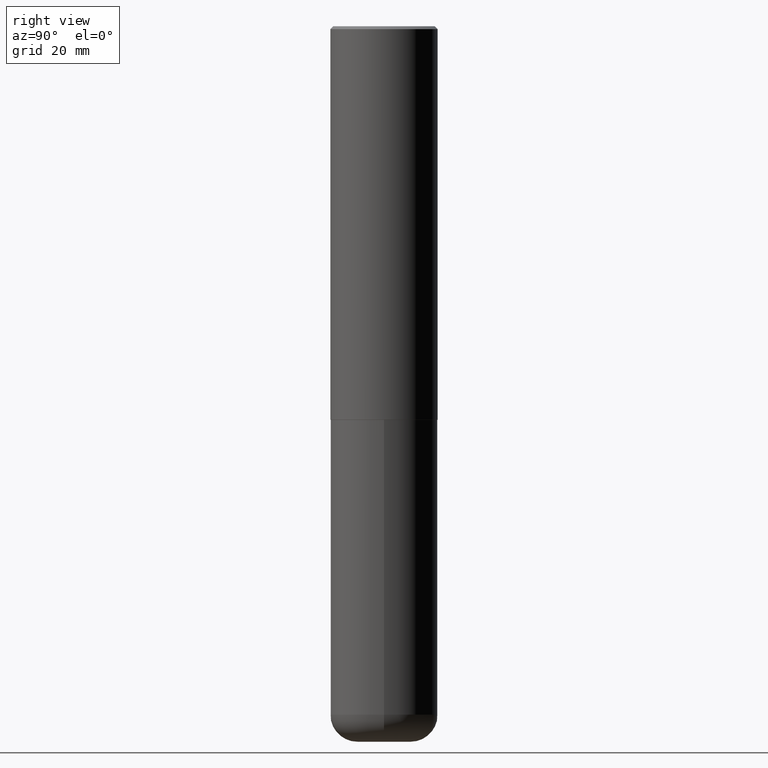
[diagram: clean part render]
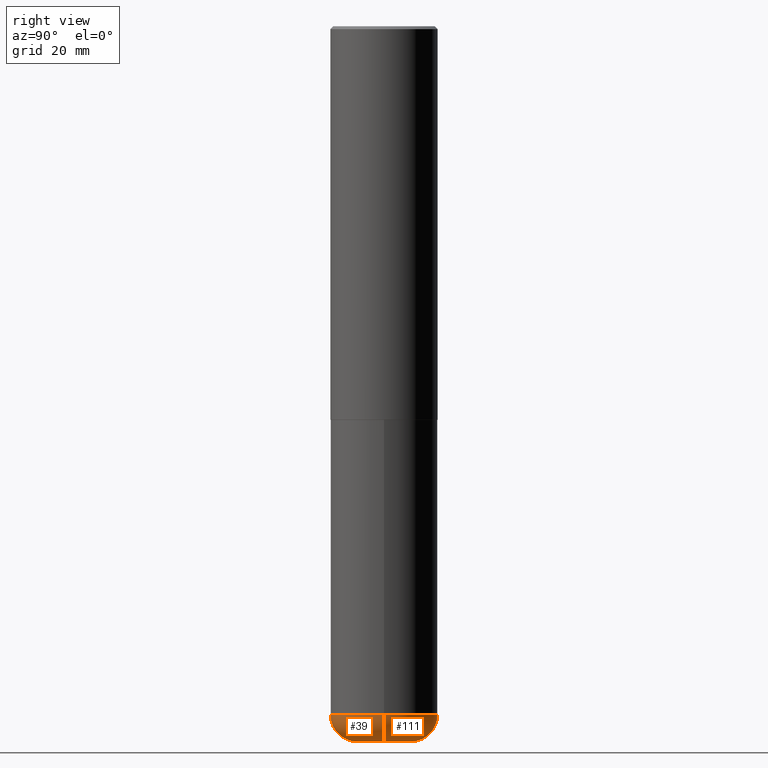
[diagram: same view with one multi-face feature highlighted, each face labeled with its STEP entity id]
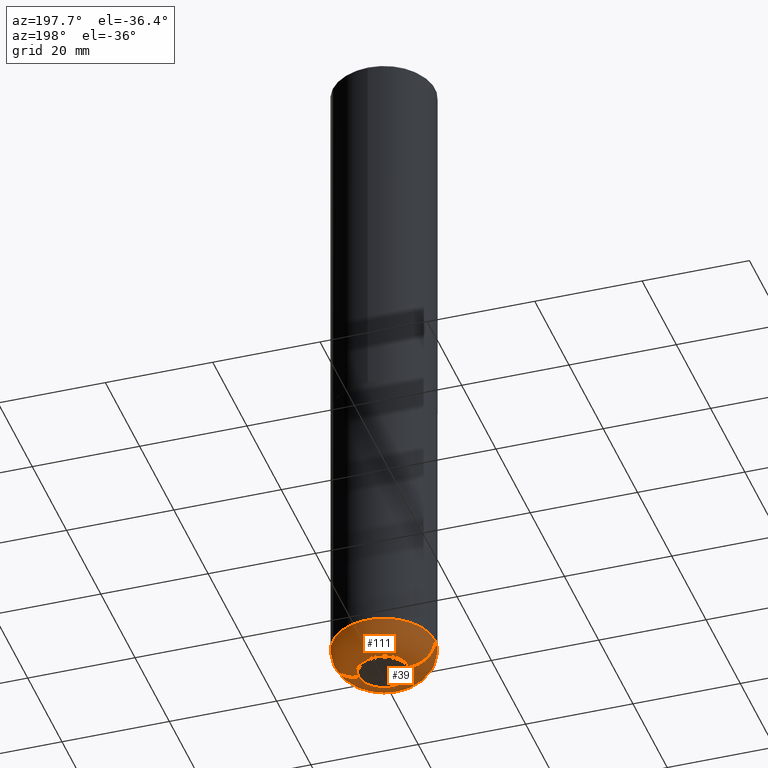
[diagram: same view with one multi-face feature highlighted, each face labeled with its STEP entity id]
A machine part, right view. The highlighted faces form ONE feature: a constant-radius fillet chain: 2 tangent blend faces with common blend radius 4.826 mm. The faces share edges in the B-rep.
A second angle (auxiliary view) of the same feature is appended — it is thin or edge-on in the first view.
Their STEP definitions:
[1] entity #111 (Torus):
#3 = ORIENTED_EDGE ( 'NONE', *, *, #187, .T. ) ;
#6 = CARTESIAN_POINT ( 'NONE',  ( 0.1850000000000000533, -1.808587333520749010E-14, -4.810000000000000497 ) ) ;
#12 = DIRECTION ( 'NONE',  ( -6.982962677686266711E-15, -1.000000000000000000, 3.491481338843145583E-15 ) ) ;
#18 = CARTESIAN_POINT ( 'NONE',  ( 1.176270495775050811E-28, -1.679402523983553013E-14, -4.810000000000000497 ) ) ;
#30 = CARTESIAN_POINT ( 'NONE',  ( 1.176270495775050811E-28, -1.679402523983553013E-14, -4.810000000000000497 ) ) ;
#41 = DIRECTION ( 'NONE',  ( 1.000000000000000000, -6.982962677686272233E-15, 0.000000000000000000 ) ) ;
#47 = CIRCLE ( 'NONE', #339, 0.1899999999999999190 ) ;
#49 = VERTEX_POINT ( 'NONE', #403 ) ;
#55 = FACE_OUTER_BOUND ( 'NONE', #101, .T. ) ;
#96 = DIRECTION ( 'NONE',  ( -2.445468806185136597E-29, 3.491481338843145583E-15, 1.000000000000000000 ) ) ;
#99 = DIRECTION ( 'NONE',  ( -1.000000000000000000, 7.105427357601001070E-15, 0.000000000000000000 ) ) ;
#100 = CIRCLE ( 'NONE', #348, 0.3750000000000001110 ) ;
#101 = EDGE_LOOP ( 'NONE', ( #152, #3, #211, #175 ) ) ;
#111 = ADVANCED_FACE ( 'NONE', ( #55 ), #267, .T. ) ;
#133 = DIRECTION ( 'NONE',  ( 7.105427357601001859E-15, 1.000000000000000000, -3.491481338843145583E-15 ) ) ;
#152 = ORIENTED_EDGE ( 'NONE', *, *, #214, .T. ) ;
#154 = EDGE_CURVE ( 'NONE', #181, #363, #100, .T. ) ;
#163 = AXIS2_PLACEMENT_3D ( 'NONE', #238, #335, #41 ) ;
#175 = ORIENTED_EDGE ( 'NONE', *, *, #308, .F. ) ;
#181 = VERTEX_POINT ( 'NONE', #319 ) ;
#187 = EDGE_CURVE ( 'NONE', #49, #363, #47, .T. ) ;
#208 = VERTEX_POINT ( 'NONE', #235 ) ;
#211 = ORIENTED_EDGE ( 'NONE', *, *, #154, .F. ) ;
#214 = EDGE_CURVE ( 'NONE', #208, #49, #283, .T. ) ;
#225 = DIRECTION ( 'NONE',  ( 1.000000000000000000, -6.982962677686265922E-15, 0.000000000000000000 ) ) ;
#235 = CARTESIAN_POINT ( 'NONE',  ( 0.1850000000000000810, -1.874925478958768986E-14, -5.000000000000000000 ) ) ;
#238 = CARTESIAN_POINT ( 'NONE',  ( 1.222734403092568523E-28, -1.745740669421572989E-14, -5.000000000000000000 ) ) ;
#241 = AXIS2_PLACEMENT_3D ( 'NONE', #6, #12, #280 ) ;
#254 = DIRECTION ( 'NONE',  ( 1.000000000000000000, -6.982962677686269077E-15, 4.883557194083113462E-29 ) ) ;
#267 = TOROIDAL_SURFACE ( 'NONE', #317, 0.1850000000000000533, 0.1899999999999999467 ) ;
#280 = DIRECTION ( 'NONE',  ( 1.000000000000000000, -6.982962677686264344E-15, 0.000000000000000000 ) ) ;
#283 = CIRCLE ( 'NONE', #163, 0.1850000000000000810 ) ;
#308 = EDGE_CURVE ( 'NONE', #208, #181, #361, .T. ) ;
#317 = AXIS2_PLACEMENT_3D ( 'NONE', #18, #376, #254 ) ;
#319 = CARTESIAN_POINT ( 'NONE',  ( 0.3750000000000000555, -1.941263624396788015E-14, -4.810000000000000497 ) ) ;
#320 = CARTESIAN_POINT ( 'NONE',  ( -0.1850000000000000533, -1.547952117867934441E-14, -4.810000000000000497 ) ) ;
#335 = DIRECTION ( 'NONE',  ( -2.445468806185136597E-29, 3.491481338843145583E-15, 1.000000000000000000 ) ) ;
#339 = AXIS2_PLACEMENT_3D ( 'NONE', #320, #133, #99 ) ;
#342 = CARTESIAN_POINT ( 'NONE',  ( -0.3750000000000000555, -1.412948998073515443E-14, -4.810000000000000497 ) ) ;
#348 = AXIS2_PLACEMENT_3D ( 'NONE', #30, #96, #225 ) ;
#361 = CIRCLE ( 'NONE', #241, 0.1899999999999999190 ) ;
#363 = VERTEX_POINT ( 'NONE', #342 ) ;
#376 = DIRECTION ( 'NONE',  ( -2.445468806185136597E-29, 3.491481338843145583E-15, 1.000000000000000000 ) ) ;
#403 = CARTESIAN_POINT ( 'NONE',  ( -0.1850000000000000810, -1.513619630689734772E-14, -5.000000000000000000 ) ) ;
[2] entity #39 (Torus):
#6 = CARTESIAN_POINT ( 'NONE',  ( 0.1850000000000000533, -1.808587333520749010E-14, -4.810000000000000497 ) ) ;
#12 = DIRECTION ( 'NONE',  ( -6.982962677686266711E-15, -1.000000000000000000, 3.491481338843145583E-15 ) ) ;
#20 = DIRECTION ( 'NONE',  ( 1.000000000000000000, -6.982962677686265922E-15, 0.000000000000000000 ) ) ;
#31 = DIRECTION ( 'NONE',  ( 1.000000000000000000, -6.982962677686272233E-15, 0.000000000000000000 ) ) ;
#39 = ADVANCED_FACE ( 'NONE', ( #307 ), #257, .T. ) ;
#47 = CIRCLE ( 'NONE', #339, 0.1899999999999999190 ) ;
#49 = VERTEX_POINT ( 'NONE', #403 ) ;
#58 = DIRECTION ( 'NONE',  ( -2.445468806185136597E-29, 3.491481338843145583E-15, 1.000000000000000000 ) ) ;
#65 = EDGE_CURVE ( 'NONE', #49, #208, #385, .T. ) ;
#83 = AXIS2_PLACEMENT_3D ( 'NONE', #374, #58, #346 ) ;
#99 = DIRECTION ( 'NONE',  ( -1.000000000000000000, 7.105427357601001070E-15, 0.000000000000000000 ) ) ;
#106 = ORIENTED_EDGE ( 'NONE', *, *, #187, .F. ) ;
#133 = DIRECTION ( 'NONE',  ( 7.105427357601001859E-15, 1.000000000000000000, -3.491481338843145583E-15 ) ) ;
#146 = EDGE_CURVE ( 'NONE', #363, #181, #185, .T. ) ;
#181 = VERTEX_POINT ( 'NONE', #319 ) ;
#185 = CIRCLE ( 'NONE', #322, 0.3750000000000001110 ) ;
#187 = EDGE_CURVE ( 'NONE', #49, #363, #47, .T. ) ;
#195 = CARTESIAN_POINT ( 'NONE',  ( 1.222734403092568523E-28, -1.745740669421572989E-14, -5.000000000000000000 ) ) ;
#200 = DIRECTION ( 'NONE',  ( -2.445468806185136597E-29, 3.491481338843145583E-15, 1.000000000000000000 ) ) ;
#208 = VERTEX_POINT ( 'NONE', #235 ) ;
#235 = CARTESIAN_POINT ( 'NONE',  ( 0.1850000000000000810, -1.874925478958768986E-14, -5.000000000000000000 ) ) ;
#241 = AXIS2_PLACEMENT_3D ( 'NONE', #6, #12, #280 ) ;
#257 = TOROIDAL_SURFACE ( 'NONE', #83, 0.1850000000000000533, 0.1899999999999999467 ) ;
#274 = AXIS2_PLACEMENT_3D ( 'NONE', #195, #200, #31 ) ;
#280 = DIRECTION ( 'NONE',  ( 1.000000000000000000, -6.982962677686264344E-15, 0.000000000000000000 ) ) ;
#299 = ORIENTED_EDGE ( 'NONE', *, *, #146, .F. ) ;
#303 = ORIENTED_EDGE ( 'NONE', *, *, #65, .T. ) ;
#307 = FACE_OUTER_BOUND ( 'NONE', #366, .T. ) ;
#308 = EDGE_CURVE ( 'NONE', #208, #181, #361, .T. ) ;
#319 = CARTESIAN_POINT ( 'NONE',  ( 0.3750000000000000555, -1.941263624396788015E-14, -4.810000000000000497 ) ) ;
#320 = CARTESIAN_POINT ( 'NONE',  ( -0.1850000000000000533, -1.547952117867934441E-14, -4.810000000000000497 ) ) ;
#322 = AXIS2_PLACEMENT_3D ( 'NONE', #353, #416, #20 ) ;
#339 = AXIS2_PLACEMENT_3D ( 'NONE', #320, #133, #99 ) ;
#342 = CARTESIAN_POINT ( 'NONE',  ( -0.3750000000000000555, -1.412948998073515443E-14, -4.810000000000000497 ) ) ;
#346 = DIRECTION ( 'NONE',  ( 1.000000000000000000, -6.982962677686269077E-15, 4.883557194083113462E-29 ) ) ;
#353 = CARTESIAN_POINT ( 'NONE',  ( 1.176270495775050811E-28, -1.679402523983553013E-14, -4.810000000000000497 ) ) ;
#361 = CIRCLE ( 'NONE', #241, 0.1899999999999999190 ) ;
#363 = VERTEX_POINT ( 'NONE', #342 ) ;
#366 = EDGE_LOOP ( 'NONE', ( #106, #303, #388, #299 ) ) ;
#374 = CARTESIAN_POINT ( 'NONE',  ( 1.176270495775050811E-28, -1.679402523983553013E-14, -4.810000000000000497 ) ) ;
#385 = CIRCLE ( 'NONE', #274, 0.1850000000000000810 ) ;
#388 = ORIENTED_EDGE ( 'NONE', *, *, #308, .T. ) ;
#403 = CARTESIAN_POINT ( 'NONE',  ( -0.1850000000000000810, -1.513619630689734772E-14, -5.000000000000000000 ) ) ;
#416 = DIRECTION ( 'NONE',  ( -2.445468806185136597E-29, 3.491481338843145583E-15, 1.000000000000000000 ) ) ;